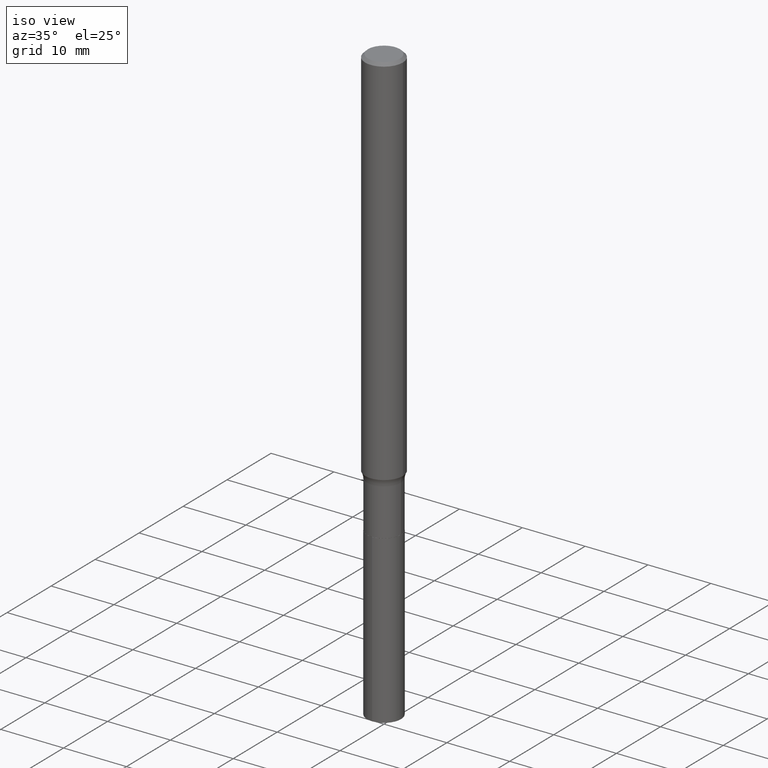
[diagram: clean part render]
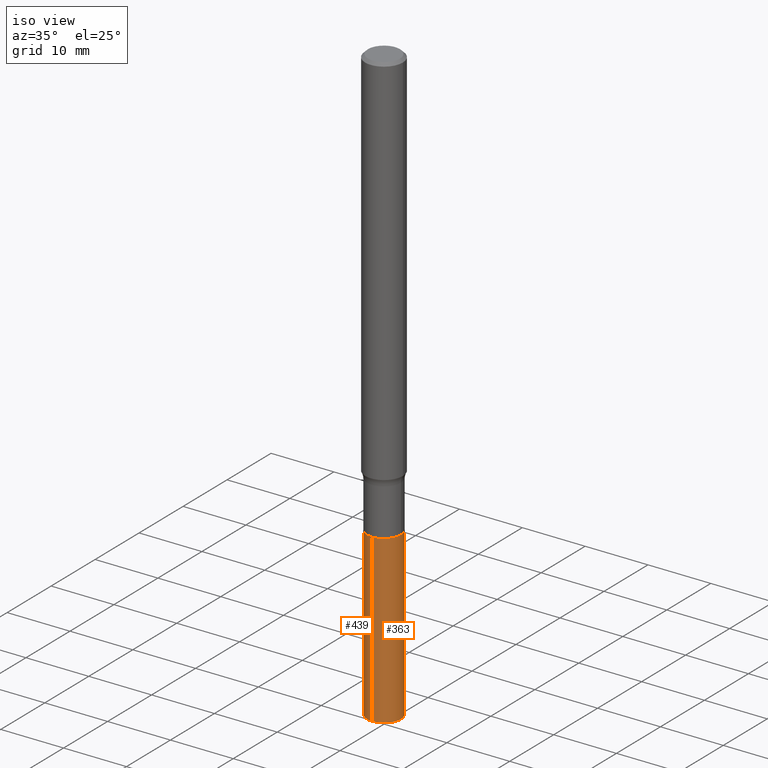
[diagram: same view with one multi-face feature highlighted, each face labeled with its STEP entity id]
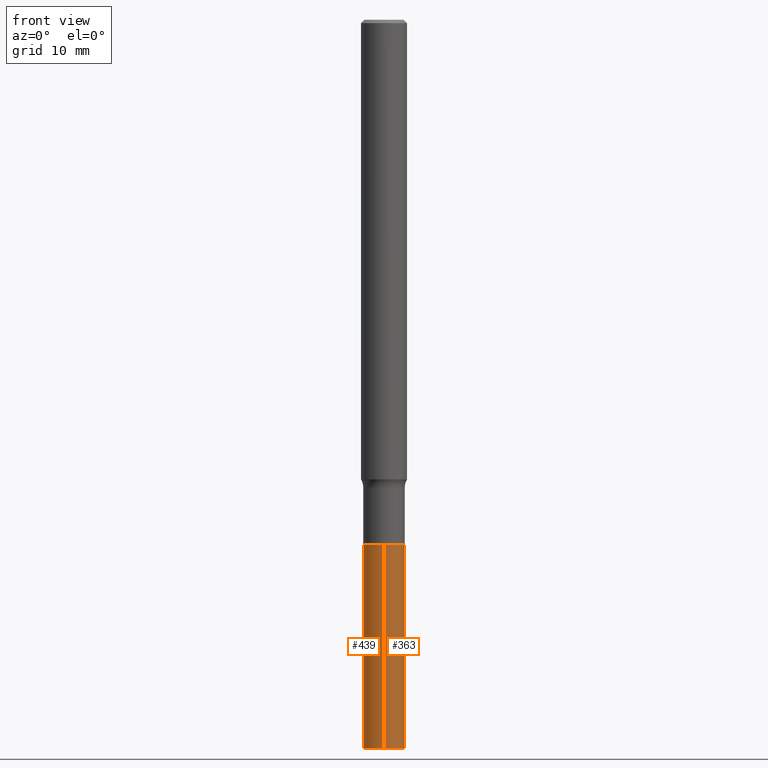
[diagram: same view with one multi-face feature highlighted, each face labeled with its STEP entity id]
A machine part, iso view. The highlighted faces form ONE feature: a constant-radius fillet chain: 2 tangent blend faces with common blend radius 2.7051 mm. The faces share edges in the B-rep.
A second angle (front view) of the same feature is appended — it is thin or edge-on in the first view.
Their STEP definitions:
[1] entity #363 (Cylinder):
#9 = VERTEX_POINT ( 'NONE', #368 ) ;
#20 = CARTESIAN_POINT ( 'NONE',  ( 7.567280135845724511E-16, 0.1064999999999905883, -2.696200000000000596 ) ) ;
#35 = EDGE_CURVE ( 'NONE', #163, #325, #66, .T. ) ;
#44 = AXIS2_PLACEMENT_3D ( 'NONE', #225, #466, #57 ) ;
#57 = DIRECTION ( 'NONE',  ( -6.982962677686265133E-15, -1.000000000000000000, 5.130230974017396004E-15 ) ) ;
#66 = CIRCLE ( 'NONE', #301, 0.1064999999999999974 ) ;
#82 = DIRECTION ( 'NONE',  ( -6.982962677686265133E-15, -1.000000000000000000, 5.130230974017396004E-15 ) ) ;
#96 = CARTESIAN_POINT ( 'NONE',  ( 7.567280135845980891E-16, 0.1064999999999905883, -2.696200000000000596 ) ) ;
#97 = DIRECTION ( 'NONE',  ( -2.445593591403688771E-29, 3.491302639307845228E-15, 1.000000000000000000 ) ) ;
#106 = FACE_OUTER_BOUND ( 'NONE', #230, .T. ) ;
#107 = VECTOR ( 'NONE', #298, 39.37007874015748143 ) ;
#117 = CARTESIAN_POINT ( 'NONE',  ( 9.146672704661818171E-29, -1.305865194122628245E-14, -3.740200000000000635 ) ) ;
#125 = ORIENTED_EDGE ( 'NONE', *, *, #387, .F. ) ;
#140 = AXIS2_PLACEMENT_3D ( 'NONE', #146, #97, #251 ) ;
#146 = CARTESIAN_POINT ( 'NONE',  ( 6.593472995236366435E-29, -9.413731985788889764E-15, -2.696200000000000152 ) ) ;
#163 = VERTEX_POINT ( 'NONE', #454 ) ;
#165 = ORIENTED_EDGE ( 'NONE', *, *, #414, .F. ) ;
#181 = ORIENTED_EDGE ( 'NONE', *, *, #35, .T. ) ;
#200 = CIRCLE ( 'NONE', #140, 0.1064999999999999974 ) ;
#217 = ORIENTED_EDGE ( 'NONE', *, *, #442, .T. ) ;
#219 = LINE ( 'NONE', #255, #107 ) ;
#225 = CARTESIAN_POINT ( 'NONE',  ( 6.593472995236366435E-29, -9.413731985788889764E-15, -2.696200000000000152 ) ) ;
#230 = EDGE_LOOP ( 'NONE', ( #181, #217, #125, #165 ) ) ;
#251 = DIRECTION ( 'NONE',  ( -6.982962677686265133E-15, -1.000000000000000000, 5.130230974017396004E-15 ) ) ;
#255 = CARTESIAN_POINT ( 'NONE',  ( -7.436855251735213731E-16, -0.1065000000000094066, -2.696199999999999708 ) ) ;
#298 = DIRECTION ( 'NONE',  ( -2.445593591403689052E-29, 3.491302639307845228E-15, 1.000000000000000000 ) ) ;
#301 = AXIS2_PLACEMENT_3D ( 'NONE', #117, #448, #82 ) ;
#309 = DIRECTION ( 'NONE',  ( -2.445593591403689052E-29, 3.491302639307845228E-15, 1.000000000000000000 ) ) ;
#325 = VERTEX_POINT ( 'NONE', #417 ) ;
#343 = LINE ( 'NONE', #20, #467 ) ;
#363 = ADVANCED_FACE ( 'NONE', ( #106 ), #407, .T. ) ;
#368 = CARTESIAN_POINT ( 'NONE',  ( -7.436855251735213731E-16, -0.1065000000000094066, -2.696199999999999708 ) ) ;
#387 = EDGE_CURVE ( 'NONE', #9, #461, #200, .T. ) ;
#407 = CYLINDRICAL_SURFACE ( 'NONE', #44, 0.1064999999999999974 ) ;
#414 = EDGE_CURVE ( 'NONE', #163, #9, #219, .T. ) ;
#417 = CARTESIAN_POINT ( 'NONE',  ( 7.567280135845851715E-16, 0.1064999999999869384, -3.740200000000001079 ) ) ;
#442 = EDGE_CURVE ( 'NONE', #325, #461, #343, .T. ) ;
#448 = DIRECTION ( 'NONE',  ( -2.445593591403688771E-29, 3.491302639307845228E-15, 1.000000000000000000 ) ) ;
#454 = CARTESIAN_POINT ( 'NONE',  ( -7.436855251734958337E-16, -0.1065000000000130564, -3.740200000000000191 ) ) ;
#461 = VERTEX_POINT ( 'NONE', #96 ) ;
#466 = DIRECTION ( 'NONE',  ( -2.445593591403688771E-29, 3.491302639307845228E-15, 1.000000000000000000 ) ) ;
#467 = VECTOR ( 'NONE', #309, 39.37007874015748143 ) ;
[2] entity #439 (Cylinder):
#3 = CYLINDRICAL_SURFACE ( 'NONE', #324, 0.1064999999999999974 ) ;
#9 = VERTEX_POINT ( 'NONE', #368 ) ;
#20 = CARTESIAN_POINT ( 'NONE',  ( 7.567280135845724511E-16, 0.1064999999999905883, -2.696200000000000596 ) ) ;
#56 = AXIS2_PLACEMENT_3D ( 'NONE', #273, #424, #134 ) ;
#63 = ORIENTED_EDGE ( 'NONE', *, *, #453, .T. ) ;
#95 = AXIS2_PLACEMENT_3D ( 'NONE', #156, #124, #445 ) ;
#96 = CARTESIAN_POINT ( 'NONE',  ( 7.567280135845980891E-16, 0.1064999999999905883, -2.696200000000000596 ) ) ;
#100 = ORIENTED_EDGE ( 'NONE', *, *, #414, .T. ) ;
#107 = VECTOR ( 'NONE', #298, 39.37007874015748143 ) ;
#124 = DIRECTION ( 'NONE',  ( -2.445593591403688771E-29, 3.491302639307845228E-15, 1.000000000000000000 ) ) ;
#134 = DIRECTION ( 'NONE',  ( -6.982962677686265133E-15, -1.000000000000000000, 5.130230974017396004E-15 ) ) ;
#143 = EDGE_LOOP ( 'NONE', ( #179, #63, #100, #351 ) ) ;
#154 = CARTESIAN_POINT ( 'NONE',  ( 6.593472995236366435E-29, -9.413731985788889764E-15, -2.696200000000000152 ) ) ;
#156 = CARTESIAN_POINT ( 'NONE',  ( 6.593472995236366435E-29, -9.413731985788889764E-15, -2.696200000000000152 ) ) ;
#163 = VERTEX_POINT ( 'NONE', #454 ) ;
#179 = ORIENTED_EDGE ( 'NONE', *, *, #442, .F. ) ;
#219 = LINE ( 'NONE', #255, #107 ) ;
#242 = EDGE_CURVE ( 'NONE', #461, #9, #367, .T. ) ;
#255 = CARTESIAN_POINT ( 'NONE',  ( -7.436855251735213731E-16, -0.1065000000000094066, -2.696199999999999708 ) ) ;
#258 = DIRECTION ( 'NONE',  ( -6.982962677686265133E-15, -1.000000000000000000, 5.130230974017396004E-15 ) ) ;
#268 = CIRCLE ( 'NONE', #56, 0.1064999999999999974 ) ;
#273 = CARTESIAN_POINT ( 'NONE',  ( 9.146672704661818171E-29, -1.305865194122628245E-14, -3.740200000000000635 ) ) ;
#295 = DIRECTION ( 'NONE',  ( -2.445593591403688771E-29, 3.491302639307845228E-15, 1.000000000000000000 ) ) ;
#298 = DIRECTION ( 'NONE',  ( -2.445593591403689052E-29, 3.491302639307845228E-15, 1.000000000000000000 ) ) ;
#309 = DIRECTION ( 'NONE',  ( -2.445593591403689052E-29, 3.491302639307845228E-15, 1.000000000000000000 ) ) ;
#324 = AXIS2_PLACEMENT_3D ( 'NONE', #154, #295, #258 ) ;
#325 = VERTEX_POINT ( 'NONE', #417 ) ;
#328 = FACE_OUTER_BOUND ( 'NONE', #143, .T. ) ;
#343 = LINE ( 'NONE', #20, #467 ) ;
#351 = ORIENTED_EDGE ( 'NONE', *, *, #242, .F. ) ;
#367 = CIRCLE ( 'NONE', #95, 0.1064999999999999974 ) ;
#368 = CARTESIAN_POINT ( 'NONE',  ( -7.436855251735213731E-16, -0.1065000000000094066, -2.696199999999999708 ) ) ;
#414 = EDGE_CURVE ( 'NONE', #163, #9, #219, .T. ) ;
#417 = CARTESIAN_POINT ( 'NONE',  ( 7.567280135845851715E-16, 0.1064999999999869384, -3.740200000000001079 ) ) ;
#424 = DIRECTION ( 'NONE',  ( -2.445593591403688771E-29, 3.491302639307845228E-15, 1.000000000000000000 ) ) ;
#439 = ADVANCED_FACE ( 'NONE', ( #328 ), #3, .T. ) ;
#442 = EDGE_CURVE ( 'NONE', #325, #461, #343, .T. ) ;
#445 = DIRECTION ( 'NONE',  ( -6.982962677686265133E-15, -1.000000000000000000, 5.130230974017396004E-15 ) ) ;
#453 = EDGE_CURVE ( 'NONE', #325, #163, #268, .T. ) ;
#454 = CARTESIAN_POINT ( 'NONE',  ( -7.436855251734958337E-16, -0.1065000000000130564, -3.740200000000000191 ) ) ;
#461 = VERTEX_POINT ( 'NONE', #96 ) ;
#467 = VECTOR ( 'NONE', #309, 39.37007874015748143 ) ;